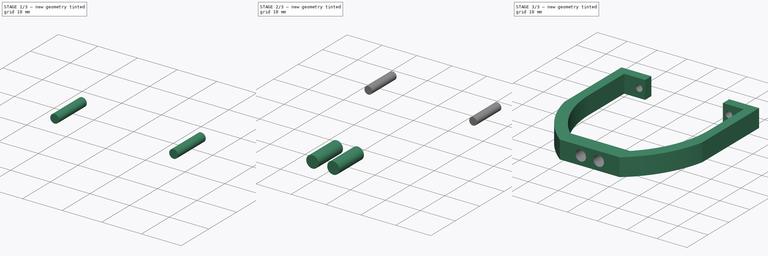
[diagram: build sequence overview — one tinted view per stage of 3, left to right]
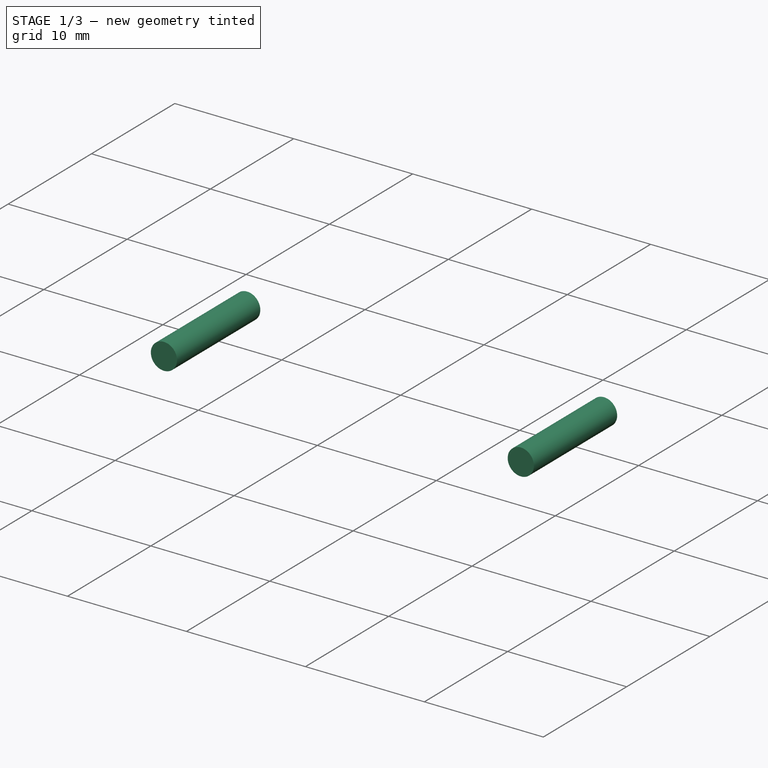
[diagram: stage 1 of 3 — iso view after this stage's code; geometry added in this stage tinted green]
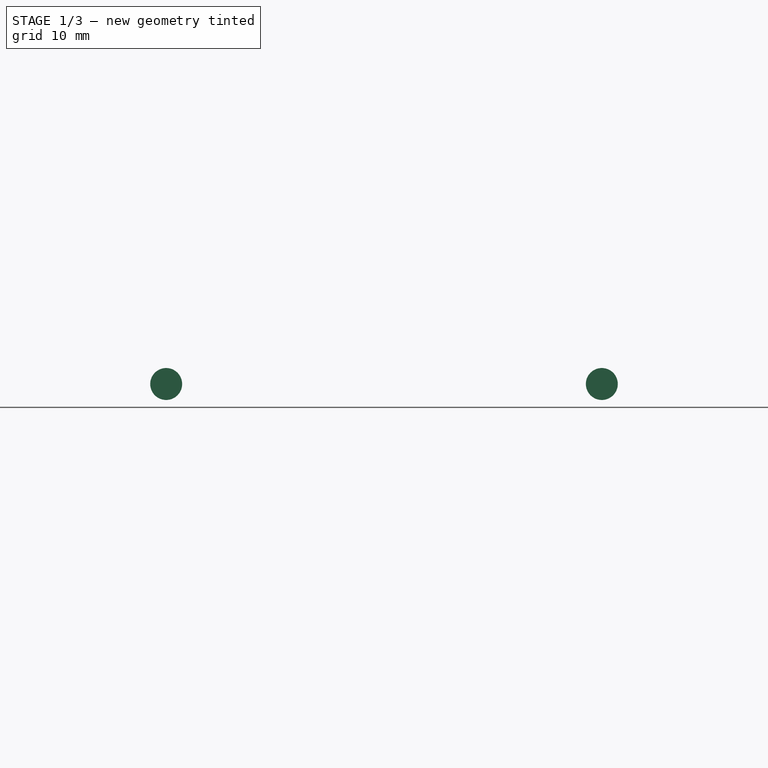
[diagram: stage 1 of 3 — front view after this stage's code; geometry added in this stage tinted green]
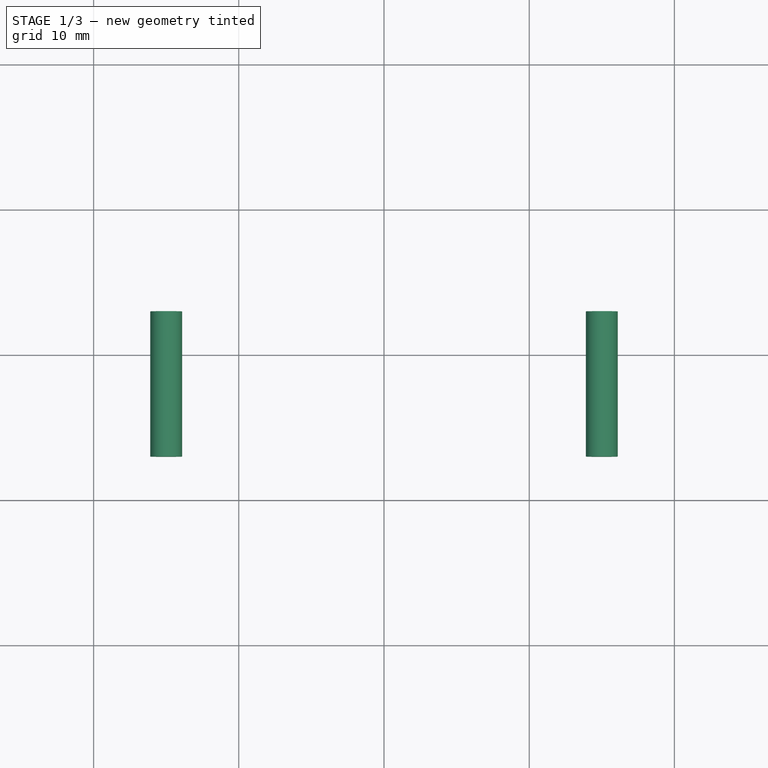
[diagram: stage 1 of 3 — top view after this stage's code; geometry added in this stage tinted green]
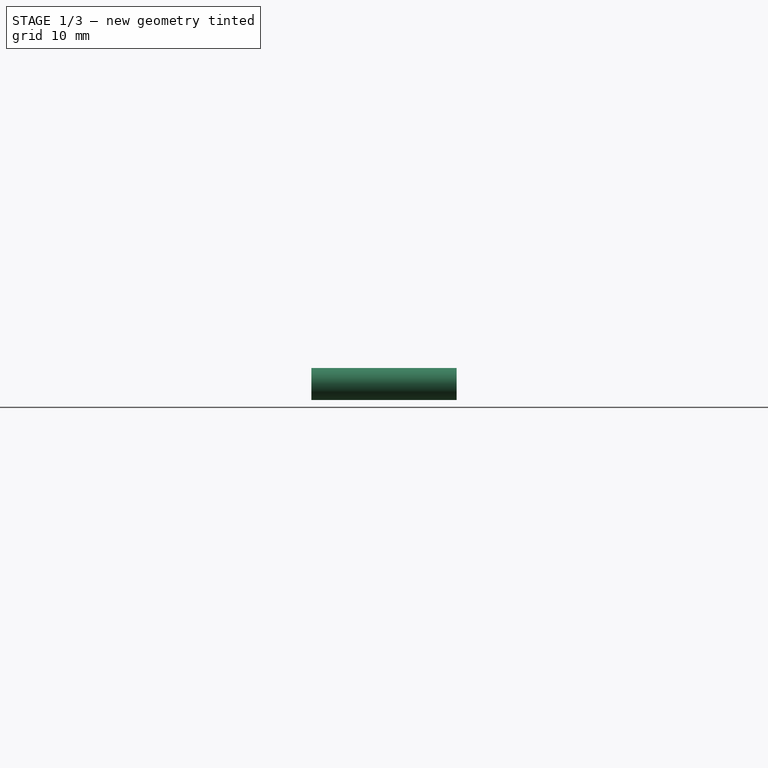
[diagram: stage 1 of 3 — right view after this stage's code; geometry added in this stage tinted green]
FCSTD DOCUMENT  (FreeCAD 0.19R24276 (Git))
Label: thrust-bracket
License: All rights reserved
LicenseURL: http://en.wikipedia.org/wiki/All_rights_reserved
objects: Part::Cylinder×4, Sketcher::SketchObject×1, Part::Extrusion×1, Part::MultiFuse×1, Part::Cut×1
note: 8 computed .brp shape members not serialized (recipe doc carries the construction recipe); baked Part::Feature solids carry a one-line shape summary decoded from their .brp

FEATURE [Part::Cylinder] Cylinder002
  Angle = 360
  AttacherType = Attacher::AttachEngine3D
  Height = 10
  Placement = pos=(15,43,3) rot=(-1,0,0;4.71239rad)
  Radius = 1.1
FEATURE [Part::Cylinder] Cylinder003
  Angle = 360
  AttacherType = Attacher::AttachEngine3D
  Height = 10
  Placement = pos=(-15,43,3) rot=(1,0,0;1.5708rad)
  Radius = 1.1
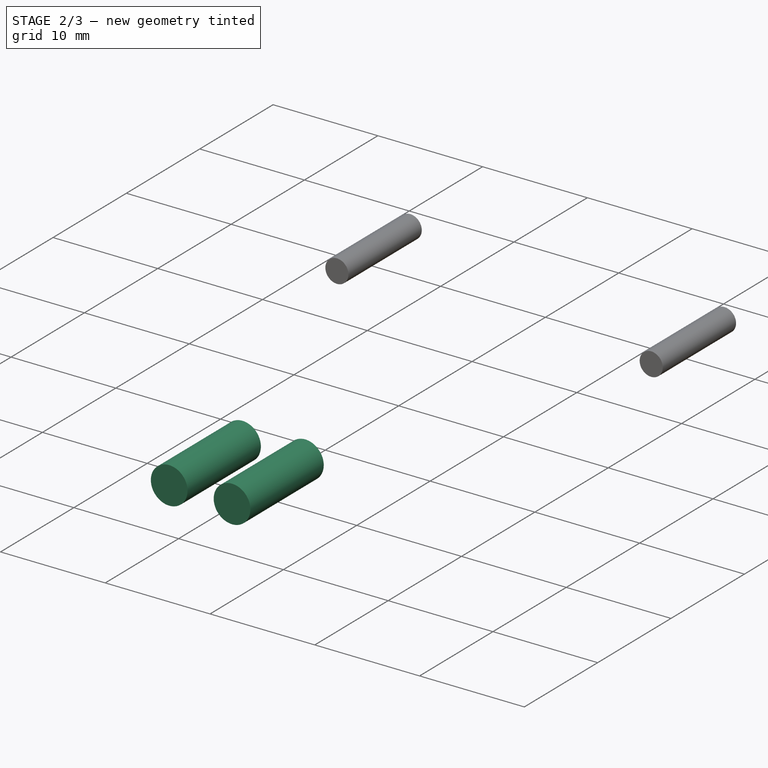
[diagram: stage 2 of 3 — iso view after this stage's code; geometry added in this stage tinted green]
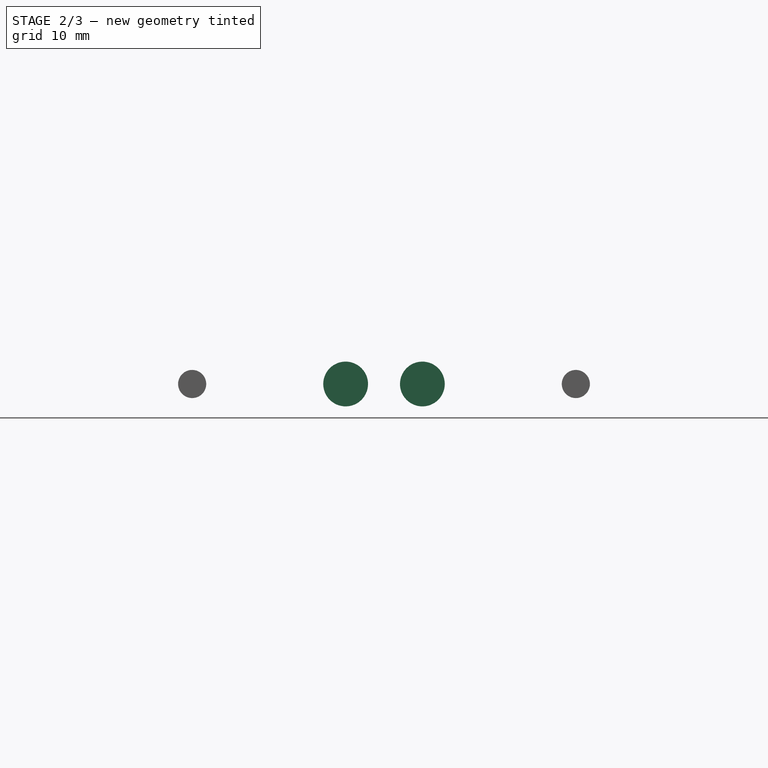
[diagram: stage 2 of 3 — front view after this stage's code; geometry added in this stage tinted green]
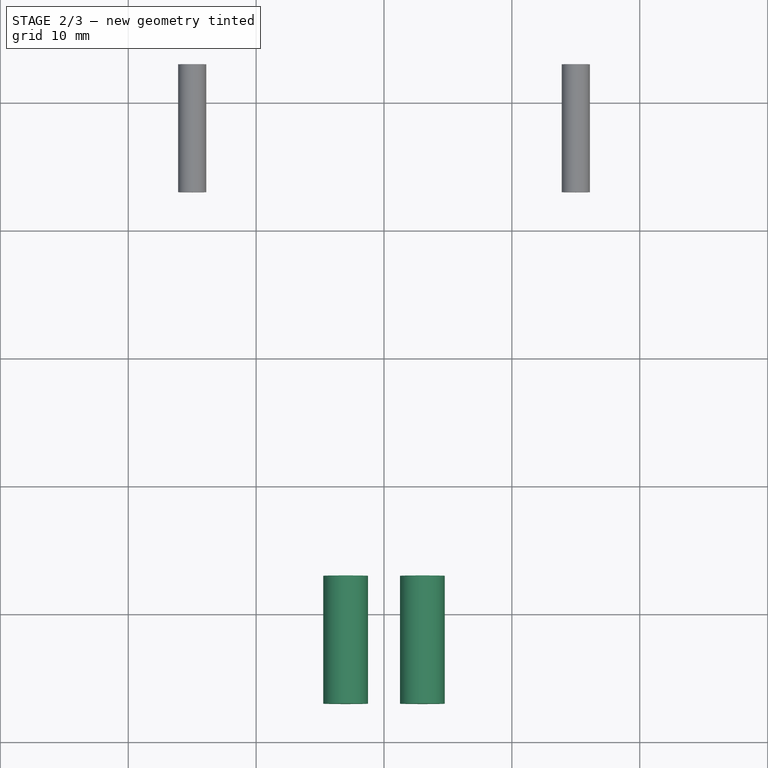
[diagram: stage 2 of 3 — top view after this stage's code; geometry added in this stage tinted green]
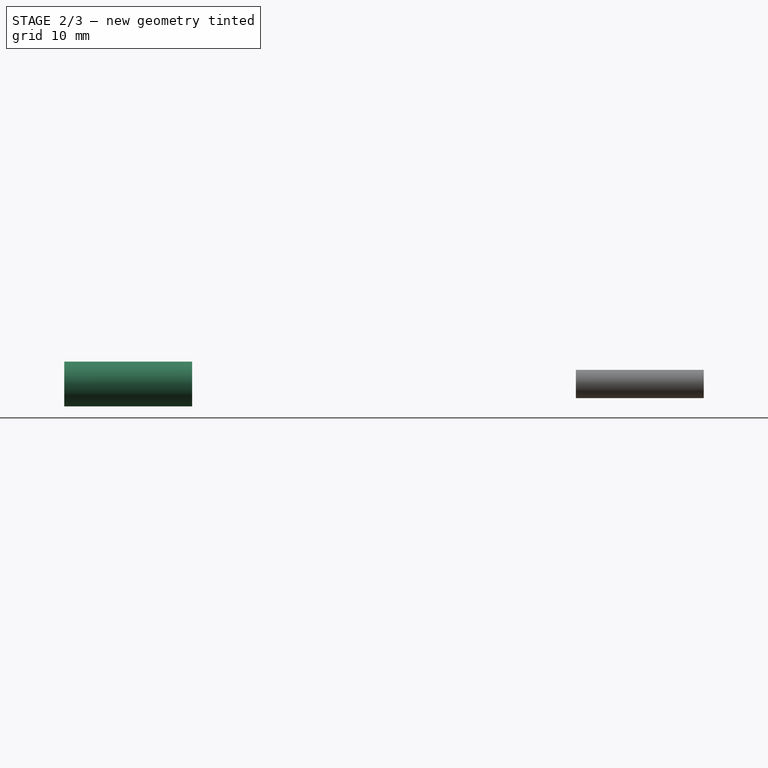
[diagram: stage 2 of 3 — right view after this stage's code; geometry added in this stage tinted green]
FEATURE [Part::Cylinder] Cylinder
  Angle = 360
  AttacherType = Attacher::AttachEngine3D
  Height = 10
  Placement = pos=(3,-7,3) rot=(-1,0,0;1.5708rad)
  Radius = 1.75
FEATURE [Part::Cylinder] Cylinder001
  Angle = 360
  AttacherType = Attacher::AttachEngine3D
  Height = 10
  Placement = pos=(-3,-7,3) rot=(-1,0,0;1.5708rad)
  Radius = 1.75
FEATURE [Part::MultiFuse] Fusion
  Shapes = -> [Cylinder,Cylinder001,Cylinder002,Cylinder003]
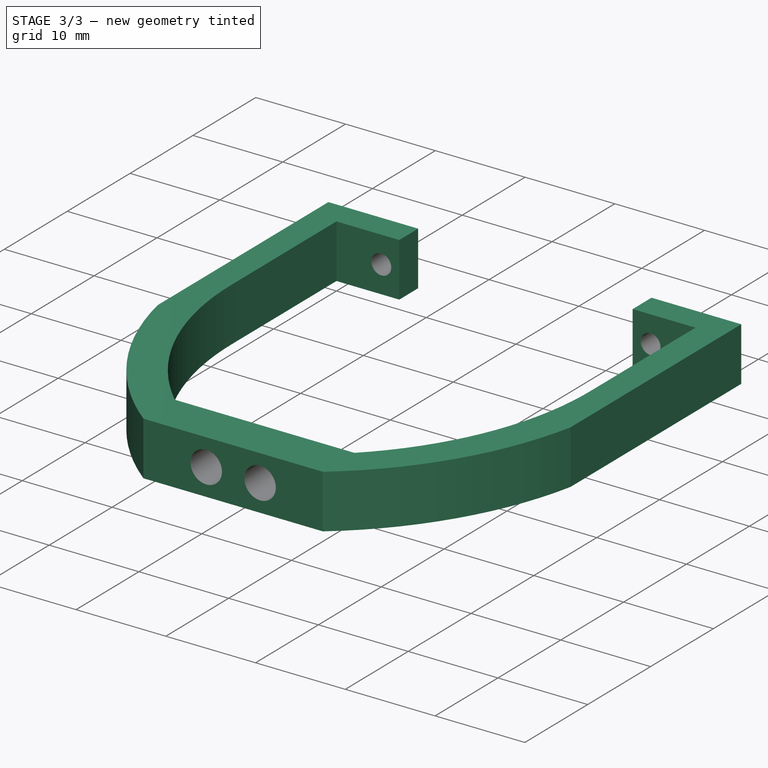
[diagram: stage 3 of 3 — iso view after this stage's code; geometry added in this stage tinted green]
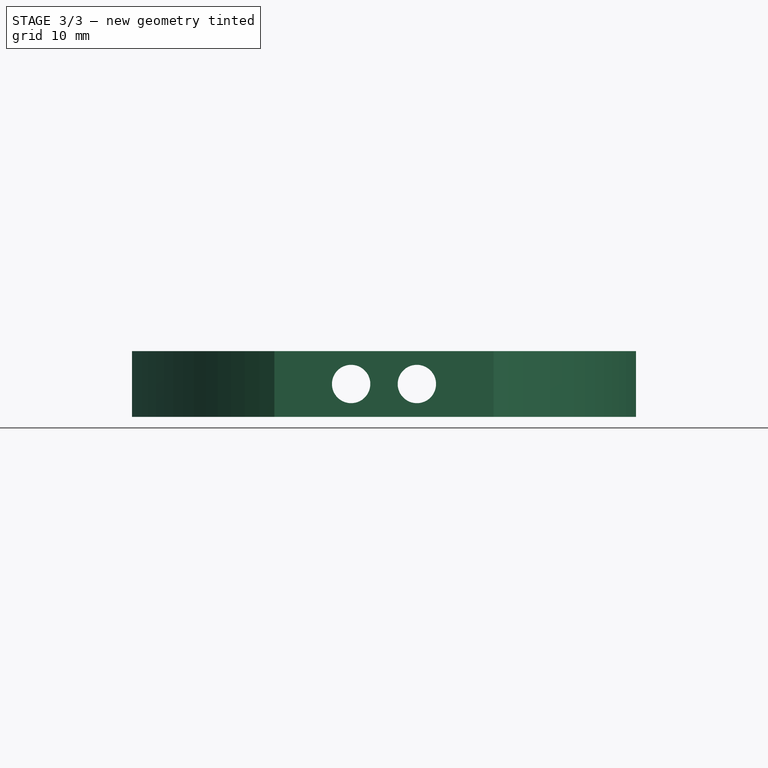
[diagram: stage 3 of 3 — front view after this stage's code; geometry added in this stage tinted green]
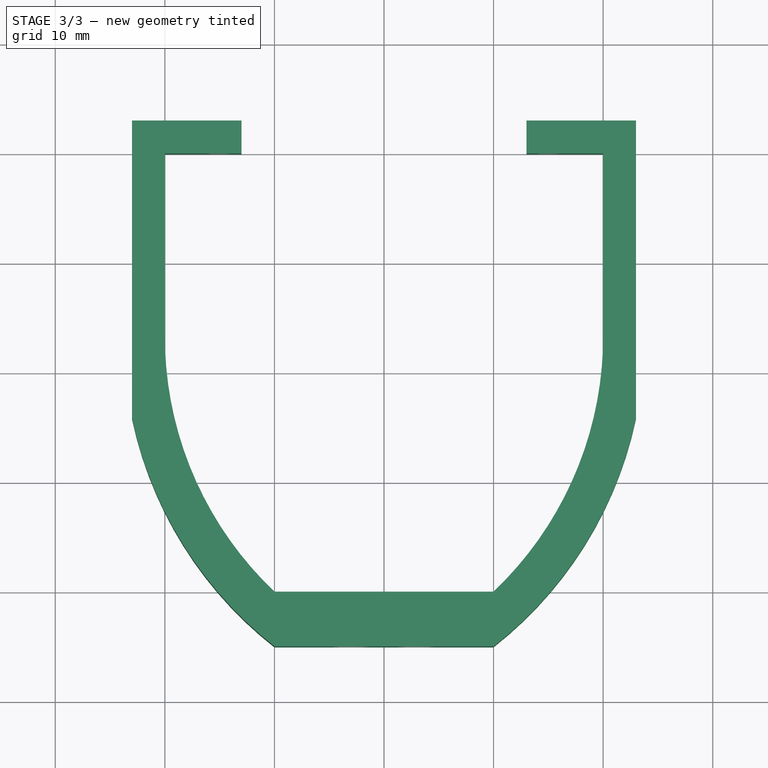
[diagram: stage 3 of 3 — top view after this stage's code; geometry added in this stage tinted green]
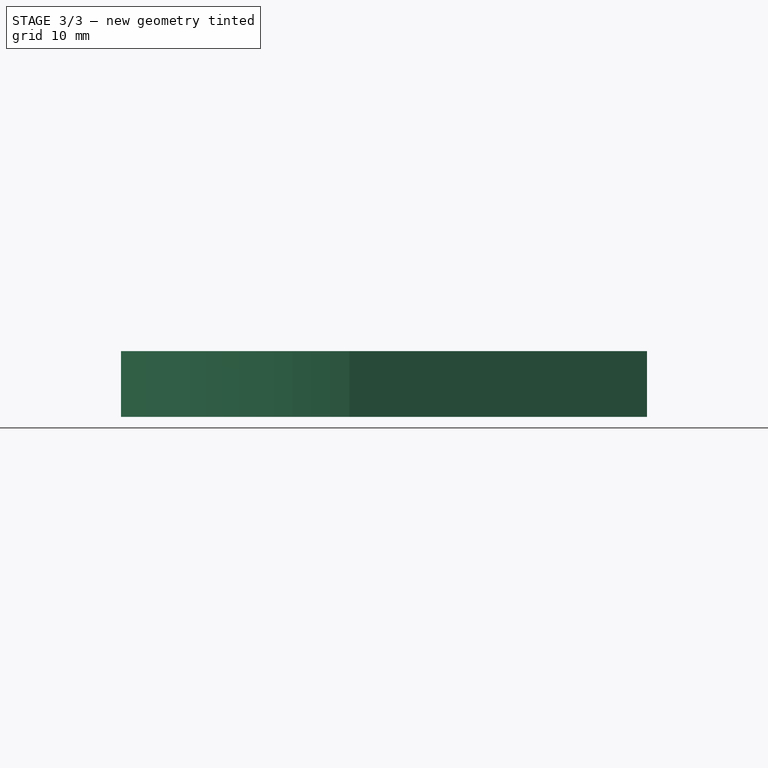
[diagram: stage 3 of 3 — right view after this stage's code; geometry added in this stage tinted green]
FEATURE [Sketcher::SketchObject] Sketch
  FullyConstrained = false
  sketch-geometry (16):
    g0: LineSegment StartX=-13 StartY=40 StartZ=0 EndX=-13 EndY=43 EndZ=0
    g1: LineSegment StartX=-13 StartY=43 StartZ=0 EndX=-23 EndY=43 EndZ=0
    g2: LineSegment StartX=13 StartY=40 StartZ=0 EndX=13 EndY=43 EndZ=0
    g3: LineSegment StartX=13 StartY=43 StartZ=0 EndX=23 EndY=43 EndZ=0
    g4: LineSegment StartX=13 StartY=40 StartZ=0 EndX=20 EndY=40 EndZ=0
    g5: LineSegment StartX=-13 StartY=40 StartZ=0 EndX=-20 EndY=40 EndZ=0
    g6: LineSegment StartX=20 StartY=40 StartZ=0 EndX=20 EndY=23.6207 EndZ=0
    g7: LineSegment StartX=23 StartY=43 StartZ=0 EndX=23 EndY=15.8232 EndZ=0
    g8: LineSegment StartX=-20 StartY=40 StartZ=0 EndX=-20 EndY=23.6207 EndZ=0
    g9: LineSegment StartX=-23 StartY=43 StartZ=0 EndX=-23 EndY=15.8232 EndZ=0
    g10: LineSegment StartX=-10 StartY=-3.6e-15 StartZ=0 EndX=10 EndY=0 EndZ=0
    g11: LineSegment StartX=-10 StartY=-5 StartZ=0 EndX=10 EndY=-5 EndZ=0
    g12: ArcOfCircle CenterX=-12.1828 CenterY=23.3184 CenterZ=0 NormalX=0 NormalY=0 NormalZ=1 AngleXU=0 Radius=32.1842 StartAngle=5.47284 EndAngle=6.29258
    g13: ArcOfCircle CenterX=-12.1828 CenterY=23.3184 CenterZ=0 NormalX=0 NormalY=0 NormalZ=1 AngleXU=0 Radius=35.9723 StartAngle=5.37689 EndAngle=6.07329
    g14: ArcOfCircle CenterX=12.1828 CenterY=23.3184 CenterZ=0 NormalX=0 NormalY=0 NormalZ=1 AngleXU=0 Radius=32.1842 StartAngle=3.1322 EndAngle=3.95194
    g15: ArcOfCircle CenterX=12.1828 CenterY=23.3184 CenterZ=0 NormalX=0 NormalY=0 NormalZ=1 AngleXU=0 Radius=35.9723 StartAngle=3.35149 EndAngle=4.04789
  constraints (41):
    c: Vertical(g0)
    c: Coincident(g1,g0)
    c: Horizontal(g1)
    c: Vertical(g2)
    c: Coincident(g3,g2)
    c: Horizontal(g3)
    c: DistanceX(g0,g2) = 26
    c: Symmetric(g0,g2,g-2)
    c: Distance(g0) = 3
    c: Distance(g3) = 10
    c: Coincident(g4,g2)
    c: Horizontal(g4)
    c: Coincident(g5,g0)
    c: Symmetric(g1,g3,g-2)
    c: Symmetric(g4,g5,g-2)
    c: Distance(g4) = 7
    c: Coincident(g6,g4)
    c: Vertical(g6)
    c: Coincident(g7,g3)
    c: Vertical(g7)
    c: Coincident(g8,g5)
    c: Coincident(g9,g1)
    c: DistanceY(g2) = 40
    c: PointOnObject(g10,g-1)
    c: Coincident(g12,g6)
    c: Coincident(g12,g10)
    c: Coincident(g13,g7)
    c: Coincident(g13,g11)
    c: Coincident(g14,g8)
    c: Coincident(g14,g10)
    c: Coincident(g15,g9)
    c: Coincident(g15,g11)
    c: Symmetric(g14,g13,g-2)
    c: DistanceX(g10) = 10
    c: Symmetric(g10,g10,g-2)
    c: DistanceX(g11) = 10
    c: Symmetric(g11,g11,g-2)
    c: Distance(g10,g11) = 5
    c: Symmetric(g6,g8,g-2)
    c: Symmetric(g7,g9,g-2)
    c: Symmetric(g15,g12,g-2)
FEATURE [Part::Extrusion] Extrude
  Base = -> Sketch
  Dir = (0,0,1)
  DirMode = 2
  FaceMakerClass = Part::FaceMakerBullseye
  LengthFwd = 6
  LengthRev = 0
  Solid = true
  Symmetric = false
FEATURE [Part::Cut] Cut
  Base = -> Extrude
  Tool = -> Fusion
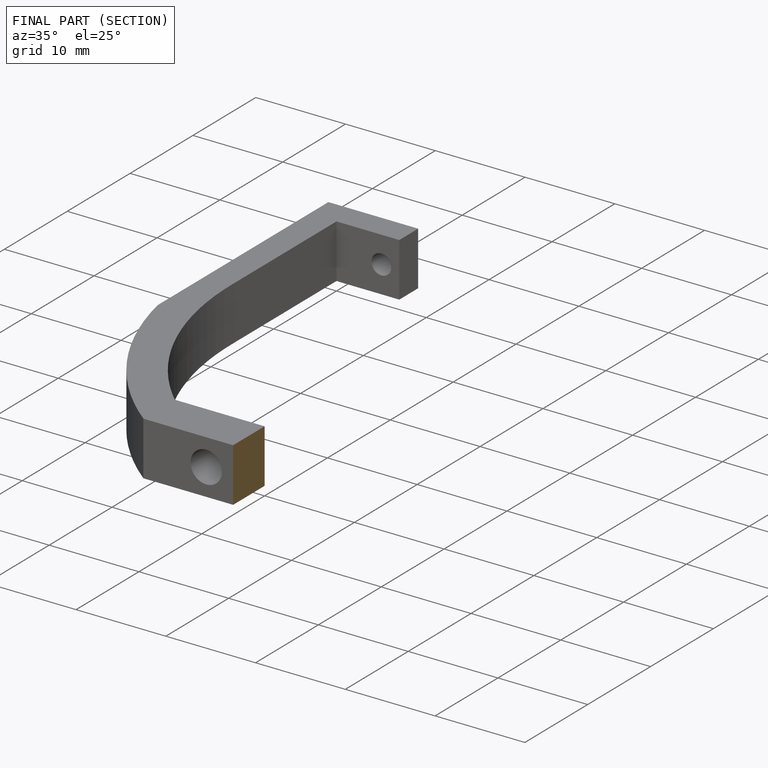
[diagram: finished part — half-section view (interior)]
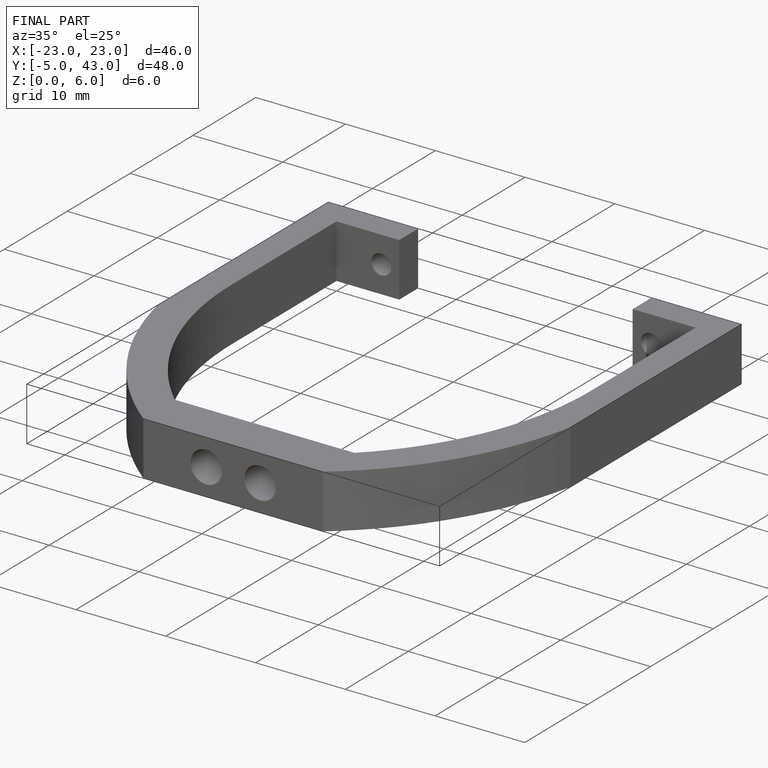
[diagram: finished part — iso view with bounding-box wireframe]
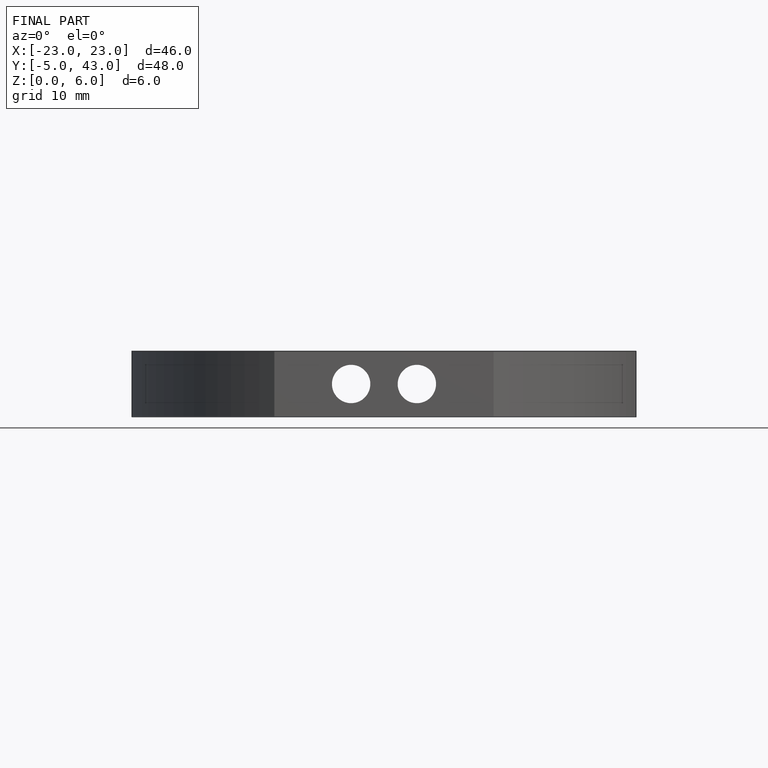
[diagram: finished part — front view with bounding-box wireframe]
